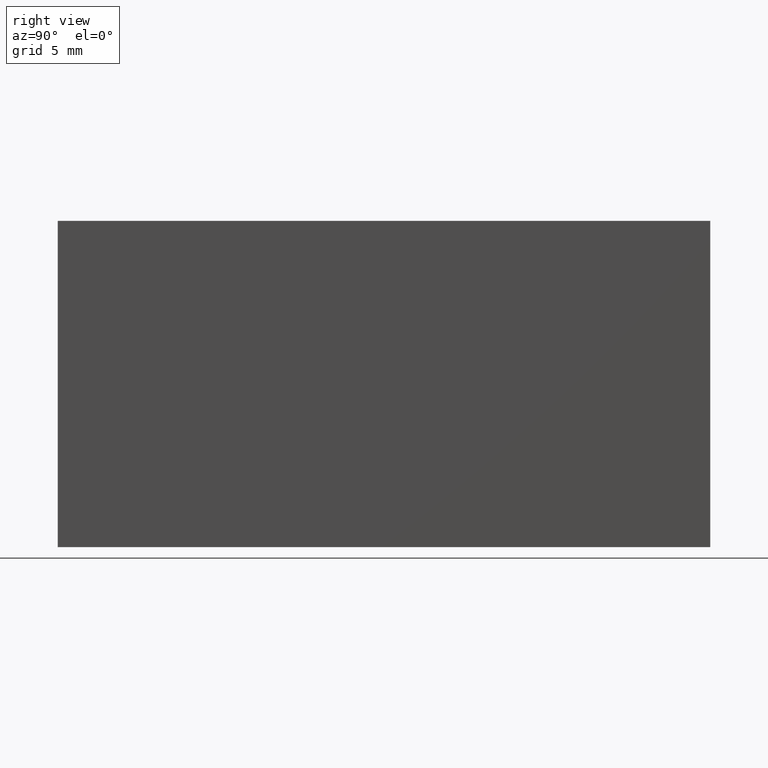
[diagram: clean part render]
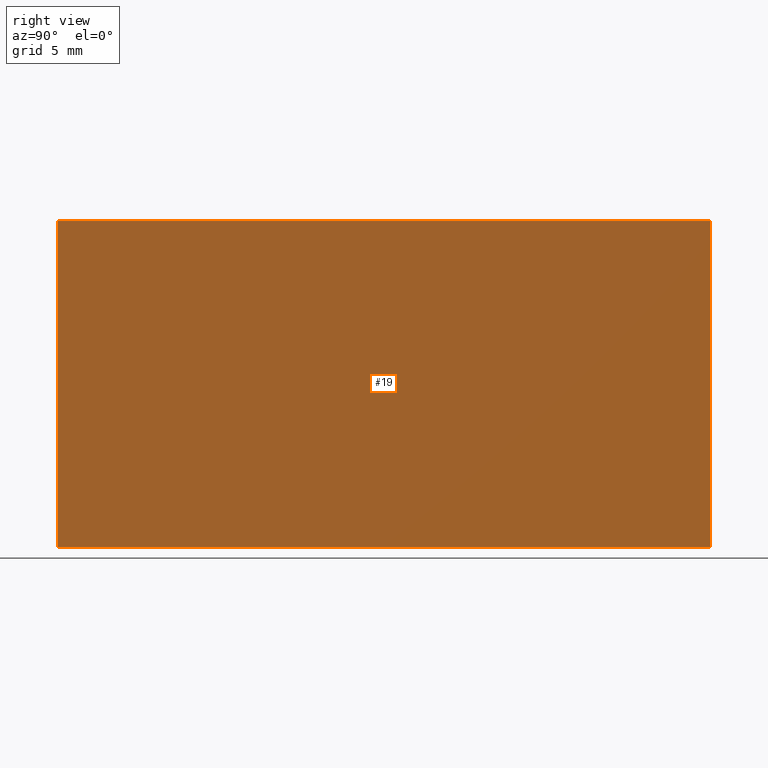
[diagram: same view with one face highlighted and labeled with its STEP entity id]
A machine part, right view. The second image highlights one B-rep face of the part: STEP entity #19.
In plain terms, the highlighted planar face has unit normal (-1, 0, 0).
Its self-contained STEP definition (entity closure, byte-faithful):
#8 = VECTOR ( 'NONE', #9, 1000.000000000000000 ) ;
#9 = DIRECTION ( 'NONE',  ( -0.0000000000000000000, -1.000000000000000000, -0.0000000000000000000 ) ) ;
#14 = LINE ( 'NONE', #89, #8 ) ;
#19 = ADVANCED_FACE ( 'NONE', ( #30 ), #62, .F. ) ;
#28 = ORIENTED_EDGE ( 'NONE', *, *, #119, .T. ) ;
#30 = FACE_OUTER_BOUND ( 'NONE', #175, .T. ) ;
#38 = ORIENTED_EDGE ( 'NONE', *, *, #171, .F. ) ;
#56 = LINE ( 'NONE', #110, #195 ) ;
#57 = VERTEX_POINT ( 'NONE', #169 ) ;
#58 = DIRECTION ( 'NONE',  ( -1.000000000000000000, 0.0000000000000000000, 6.123233995736766000E-017 ) ) ;
#62 = PLANE ( 'NONE',  #65 ) ;
#65 = AXIS2_PLACEMENT_3D ( 'NONE', #180, #58, #185 ) ;
#73 = ORIENTED_EDGE ( 'NONE', *, *, #142, .T. ) ;
#74 = VERTEX_POINT ( 'NONE', #158 ) ;
#80 = DIRECTION ( 'NONE',  ( -6.123233995736766000E-017, -0.0000000000000000000, -1.000000000000000000 ) ) ;
#89 = CARTESIAN_POINT ( 'NONE',  ( 0.0000000000000000000, 40.00000000000000000, 0.0000000000000000000 ) ) ;
#91 = DIRECTION ( 'NONE',  ( -6.123233995736766000E-017, -0.0000000000000000000, -1.000000000000000000 ) ) ;
#92 = LINE ( 'NONE', #114, #150 ) ;
#97 = CARTESIAN_POINT ( 'NONE',  ( 1.224646799147353300E-015, 40.00000000000000000, 20.00000000000000000 ) ) ;
#110 = CARTESIAN_POINT ( 'NONE',  ( 1.224646799147353300E-015, 40.00000000000000000, 20.00000000000000000 ) ) ;
#111 = VERTEX_POINT ( 'NONE', #137 ) ;
#114 = CARTESIAN_POINT ( 'NONE',  ( 0.0000000000000000000, 40.00000000000000000, 0.0000000000000000000 ) ) ;
#119 = EDGE_CURVE ( 'NONE', #74, #111, #178, .T. ) ;
#121 = DIRECTION ( 'NONE',  ( -0.0000000000000000000, -1.000000000000000000, -0.0000000000000000000 ) ) ;
#136 = EDGE_CURVE ( 'NONE', #165, #57, #92, .T. ) ;
#137 = CARTESIAN_POINT ( 'NONE',  ( 0.0000000000000000000, 0.0000000000000000000, 0.0000000000000000000 ) ) ;
#139 = CARTESIAN_POINT ( 'NONE',  ( 0.0000000000000000000, 0.0000000000000000000, 0.0000000000000000000 ) ) ;
#142 = EDGE_CURVE ( 'NONE', #165, #74, #56, .T. ) ;
#148 = ORIENTED_EDGE ( 'NONE', *, *, #136, .F. ) ;
#150 = VECTOR ( 'NONE', #91, 1000.000000000000000 ) ;
#158 = CARTESIAN_POINT ( 'NONE',  ( 1.224646799147353300E-015, 0.0000000000000000000, 20.00000000000000000 ) ) ;
#165 = VERTEX_POINT ( 'NONE', #97 ) ;
#169 = CARTESIAN_POINT ( 'NONE',  ( 0.0000000000000000000, 40.00000000000000000, 0.0000000000000000000 ) ) ;
#171 = EDGE_CURVE ( 'NONE', #57, #111, #14, .T. ) ;
#175 = EDGE_LOOP ( 'NONE', ( #28, #38, #148, #73 ) ) ;
#178 = LINE ( 'NONE', #139, #186 ) ;
#180 = CARTESIAN_POINT ( 'NONE',  ( 0.0000000000000000000, 40.00000000000000000, 0.0000000000000000000 ) ) ;
#185 = DIRECTION ( 'NONE',  ( 6.123233995736766000E-017, 0.0000000000000000000, 1.000000000000000000 ) ) ;
#186 = VECTOR ( 'NONE', #80, 1000.000000000000000 ) ;
#195 = VECTOR ( 'NONE', #121, 1000.000000000000000 ) ;